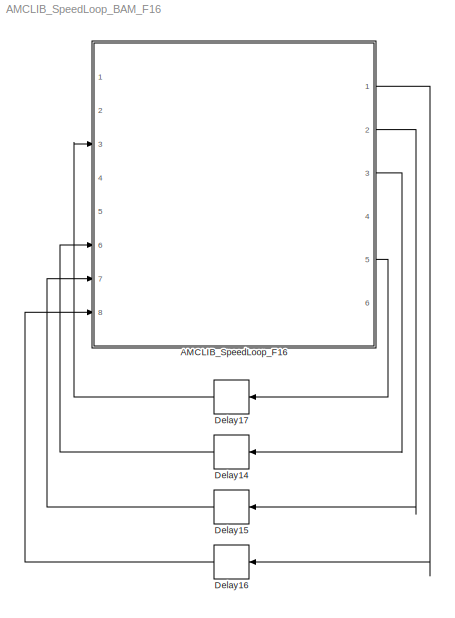
MODEL AMCLIB_SpeedLoop_BAM_F16
KIND model
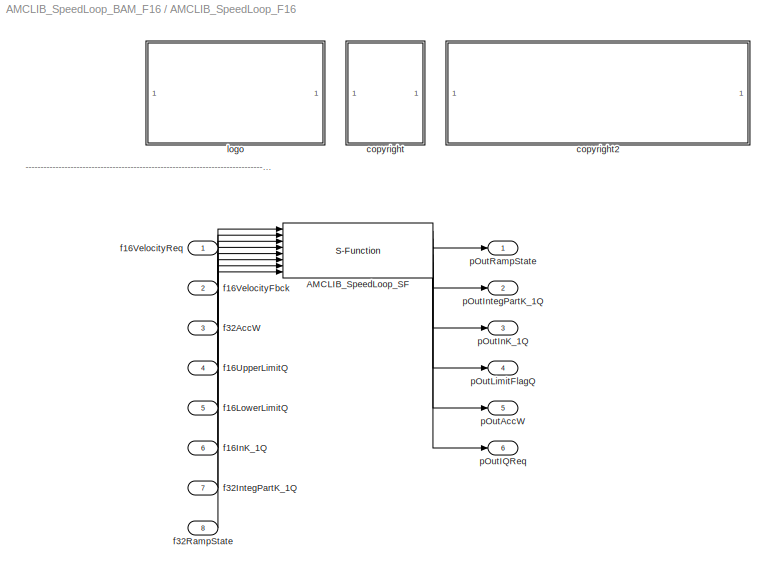
BLOCK [SubSystem] AMCLIB_SpeedLoop_F16
  Ports = [8, 6]
  RequestExecContextInheritance = off
  SID = 1
BLOCK [S-Function] AMCLIB_SpeedLoop_F16/AMCLIB_SpeedLoop_SF
  EnableBusSupport = off
  FunctionName = AMCLIB_SpeedLoop_SF_F16
  Parameters = u16NSamplesW,f16PropGainQ,s16PropGainShiftQ,f16IntegGainQ,s16IntegGainShiftQ,f32RampUp,f32RampDown
  Ports = [8, 6]
  SID = 4
BLOCK [SubSystem] AMCLIB_SpeedLoop_F16/<copyright redacted>
  Ports = []
  RequestExecContextInheritance = off
  SID = 23
BLOCK [SubSystem] AMCLIB_SpeedLoop_F16/copyright2
  Ports = []
  RequestExecContextInheritance = off
  SID = 26
BLOCK [Inport] AMCLIB_SpeedLoop_F16/f16InK_1Q
  IconDisplay = Port number
  Port = 6
  SID = 10
BLOCK [Inport] AMCLIB_SpeedLoop_F16/f16LowerLimitQ
  IconDisplay = Port number
  Port = 5
  SID = 9
BLOCK [Inport] AMCLIB_SpeedLoop_F16/f16UpperLimitQ
  IconDisplay = Port number
  Port = 4
  SID = 8
BLOCK [Inport] AMCLIB_SpeedLoop_F16/f16VelocityFbck
  IconDisplay = Port number
  Port = 2
  SID = 6
BLOCK [Inport] AMCLIB_SpeedLoop_F16/f16VelocityReq
  IconDisplay = Port number
  SID = 5
BLOCK [Inport] AMCLIB_SpeedLoop_F16/f32AccW
  IconDisplay = Port number
  Port = 3
  SID = 7
BLOCK [Inport] AMCLIB_SpeedLoop_F16/f32IntegPartK_1Q
  IconDisplay = Port number
  Port = 7
  SID = 11
BLOCK [Inport] AMCLIB_SpeedLoop_F16/f32RampState
  IconDisplay = Port number
  Port = 8
  SID = 12
BLOCK [SubSystem] AMCLIB_SpeedLoop_F16/logo
  Ports = []
  RequestExecContextInheritance = off
  SID = 19
BLOCK [Outport] AMCLIB_SpeedLoop_F16/pOutAccW
  IconDisplay = Port number
  Port = 5
  SID = 17
BLOCK [Outport] AMCLIB_SpeedLoop_F16/pOutIQReq
  IconDisplay = Port number
  Port = 6
  SID = 18
BLOCK [Outport] AMCLIB_SpeedLoop_F16/pOutInK_1Q
  IconDisplay = Port number
  Port = 3
  SID = 15
BLOCK [Outport] AMCLIB_SpeedLoop_F16/pOutIntegPartK_1Q
  IconDisplay = Port number
  Port = 2
  SID = 14
BLOCK [Outport] AMCLIB_SpeedLoop_F16/pOutLimitFlagQ
  IconDisplay = Port number
  Port = 4
  SID = 16
BLOCK [Outport] AMCLIB_SpeedLoop_F16/pOutRampState
  IconDisplay = Port number
  SID = 13
BLOCK [Delay] Delay14
  DelayLength = 1
  InitialCondition = 0
  InputPortMap = u0
  Ports = [1, 1]
  SID = 49
BLOCK [Delay] Delay15
  DelayLength = 1
  InitialCondition = 0
  InputPortMap = u0
  Ports = [1, 1]
  SID = 50
BLOCK [Delay] Delay16
  DelayLength = 1
  InitialCondition = 0
  InputPortMap = u0
  Ports = [1, 1]
  SID = 51
BLOCK [Delay] Delay17
  DelayLength = 1
  InitialCondition = 0
  InputPortMap = u0
  Ports = [1, 1]
  SID = 52
ANNOTATION AMCLIB_SpeedLoop_F16: ---------------------------------------------------------------------------------------------------------------------------------------------------------------------------------------------------
LINE AMCLIB_SpeedLoop_F16/AMCLIB_SpeedLoop_SF:1 -> AMCLIB_SpeedLoop_F16/pOutRampState:1
LINE AMCLIB_SpeedLoop_F16/AMCLIB_SpeedLoop_SF:2 -> AMCLIB_SpeedLoop_F16/pOutIntegPartK_1Q:1
LINE AMCLIB_SpeedLoop_F16/AMCLIB_SpeedLoop_SF:3 -> AMCLIB_SpeedLoop_F16/pOutInK_1Q:1
LINE AMCLIB_SpeedLoop_F16/AMCLIB_SpeedLoop_SF:4 -> AMCLIB_SpeedLoop_F16/pOutLimitFlagQ:1
LINE AMCLIB_SpeedLoop_F16/AMCLIB_SpeedLoop_SF:5 -> AMCLIB_SpeedLoop_F16/pOutAccW:1
LINE AMCLIB_SpeedLoop_F16/AMCLIB_SpeedLoop_SF:6 -> AMCLIB_SpeedLoop_F16/pOutIQReq:1
LINE AMCLIB_SpeedLoop_F16/f16InK_1Q:1 -> AMCLIB_SpeedLoop_F16/AMCLIB_SpeedLoop_SF:6
LINE AMCLIB_SpeedLoop_F16/f16LowerLimitQ:1 -> AMCLIB_SpeedLoop_F16/AMCLIB_SpeedLoop_SF:5
LINE AMCLIB_SpeedLoop_F16/f16UpperLimitQ:1 -> AMCLIB_SpeedLoop_F16/AMCLIB_SpeedLoop_SF:4
LINE AMCLIB_SpeedLoop_F16/f16VelocityFbck:1 -> AMCLIB_SpeedLoop_F16/AMCLIB_SpeedLoop_SF:2
LINE AMCLIB_SpeedLoop_F16/f16VelocityReq:1 -> AMCLIB_SpeedLoop_F16/AMCLIB_SpeedLoop_SF:1
LINE AMCLIB_SpeedLoop_F16/f32AccW:1 -> AMCLIB_SpeedLoop_F16/AMCLIB_SpeedLoop_SF:3
LINE AMCLIB_SpeedLoop_F16/f32IntegPartK_1Q:1 -> AMCLIB_SpeedLoop_F16/AMCLIB_SpeedLoop_SF:7
LINE AMCLIB_SpeedLoop_F16/f32RampState:1 -> AMCLIB_SpeedLoop_F16/AMCLIB_SpeedLoop_SF:8
LINE AMCLIB_SpeedLoop_F16:1 -> Delay16:1
LINE AMCLIB_SpeedLoop_F16:2 -> Delay15:1
LINE AMCLIB_SpeedLoop_F16:3 -> Delay14:1
LINE AMCLIB_SpeedLoop_F16:5 -> Delay17:1
LINE Delay14:1 -> AMCLIB_SpeedLoop_F16:6
LINE Delay15:1 -> AMCLIB_SpeedLoop_F16:7
LINE Delay16:1 -> AMCLIB_SpeedLoop_F16:8
LINE Delay17:1 -> AMCLIB_SpeedLoop_F16:3
